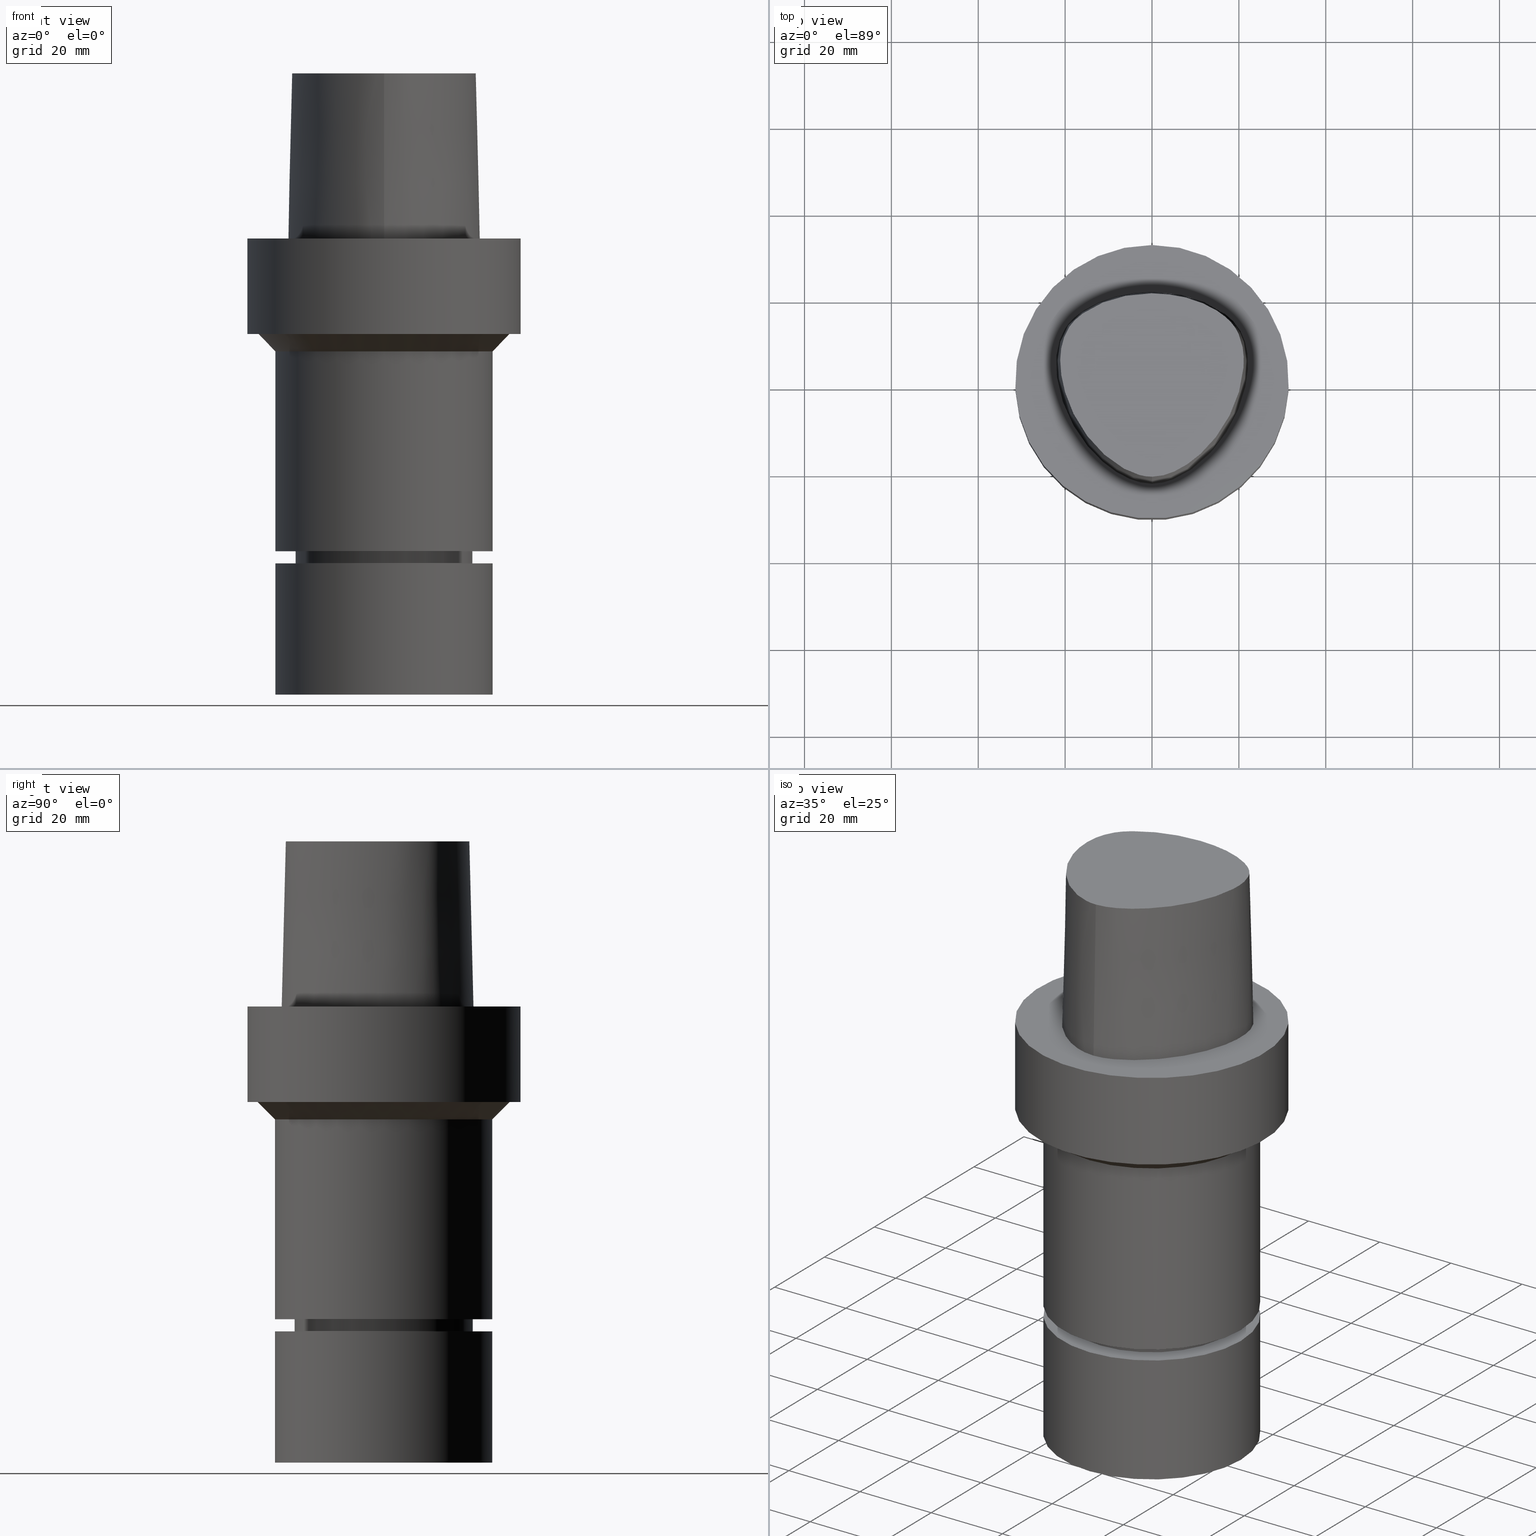
[diagram: canonical four-view strip — front | top / right | iso, engineering-drawing reading convention]
A machine part, canonical four-view strip (front | top / right | iso — engineering-drawing reading convention). The complete STEP part file that produces these views, byte-faithful:
ISO-10303-21;
HEADER;
FILE_DESCRIPTION((''),'1');
FILE_NAME('V:/90_\X2\53D65F9730C730FC30BF\X0\/00_\X2\6DE18DEF30C730FC30BF\X0\/ALL/CAPTO-BKUS\X2\52A05DE556F3\X0\_201801/C6-MEGAER/C6-MEGAER32-105NL.stp','2018-02-01T08:54:17',(''),(''),'Spatial Interop R21 SP3','Kubotek KeyCreator 2011 V10.0.2 (22737)',' ');
FILE_SCHEMA(('automotive_design'));
ENDSEC;
DATA;
#1=MECHANICAL_DESIGN_GEOMETRIC_PRESENTATION_REPRESENTATION(' ',(#14,#15,#16,#17,#18,#19,#20,#21,#22,#23,#24,#25,#26,#27,#28,#29,#30,#31,#32,#33,#34,#35,#36,#37,#38,#39,#40,#41,#42,#43,#44,#45,#46,#47,#48,#49,#50,#51,#52,#53),#10);
#2=PRODUCT_DEFINITION_CONTEXT('',#54,'design');
#3=APPLICATION_PROTOCOL_DEFINITION('INTERNATIONAL STANDARD','automotive_design',1994,#54);
#4=PRODUCT_CATEGORY_RELATIONSHIP('NONE','NONE',#55,#56);
#5=SHAPE_DEFINITION_REPRESENTATION(#57,#58);
#6=PRODUCT_DEFINITION_CONTEXT('',#59,'design');
#7=APPLICATION_PROTOCOL_DEFINITION('INTERNATIONAL STANDARD','automotive_design',1994,#59);
#8=PRODUCT_CATEGORY_RELATIONSHIP('NONE','NONE',#60,#61);
#9=SHAPE_DEFINITION_REPRESENTATION(#62,#63);
#10= (GEOMETRIC_REPRESENTATION_CONTEXT(3)GLOBAL_UNCERTAINTY_ASSIGNED_CONTEXT((#66))GLOBAL_UNIT_ASSIGNED_CONTEXT((#68,#69,#70))REPRESENTATION_CONTEXT('NONE','WORKSPACE'));
#14=STYLED_ITEM('',(#72,#73),#74);
#15=STYLED_ITEM('',(#75,#76),#77);
#16=STYLED_ITEM('',(#78,#79),#80);
#17=STYLED_ITEM('',(#81,#82),#83);
#18=STYLED_ITEM('',(#84),#85);
#19=STYLED_ITEM('',(#86),#87);
#20=STYLED_ITEM('',(#88),#89);
#21=STYLED_ITEM('',(#90),#91);
#22=STYLED_ITEM('',(#92,#93),#94);
#23=STYLED_ITEM('',(#95),#96);
#24=STYLED_ITEM('',(#97),#98);
#25=STYLED_ITEM('',(#99),#100);
#26=STYLED_ITEM('',(#101),#102);
#27=STYLED_ITEM('',(#103,#104),#105);
#28=STYLED_ITEM('',(#106),#107);
#29=STYLED_ITEM('',(#108,#109),#110);
#30=STYLED_ITEM('',(#111,#112),#113);
#31=STYLED_ITEM('',(#114,#115),#116);
#32=STYLED_ITEM('',(#117),#118);
#33=STYLED_ITEM('',(#119),#120);
#34=STYLED_ITEM('',(#121,#122),#123);
#35=STYLED_ITEM('',(#124),#125);
#36=STYLED_ITEM('',(#126,#127),#128);
#37=STYLED_ITEM('',(#129),#130);
#38=STYLED_ITEM('',(#131,#132),#133);
#39=STYLED_ITEM('',(#134,#135),#136);
#40=STYLED_ITEM('',(#137,#138),#139);
#41=STYLED_ITEM('',(#140,#141),#142);
#42=STYLED_ITEM('',(#143,#144),#145);
#43=STYLED_ITEM('',(#146),#147);
#44=STYLED_ITEM('',(#148),#149);
#45=STYLED_ITEM('',(#150),#151);
#46=STYLED_ITEM('',(#152,#153),#154);
#47=STYLED_ITEM('',(#155,#156),#157);
#48=STYLED_ITEM('',(#158),#159);
#49=STYLED_ITEM('',(#160),#161);
#50=STYLED_ITEM('',(#162),#163);
#51=STYLED_ITEM('',(#164,#165),#166);
#52=STYLED_ITEM('',(#167,#168),#169);
#53=STYLED_ITEM('',(#170),#171);
#54=APPLICATION_CONTEXT(' ');
#55=PRODUCT_CATEGORY('part','NONE');
#56=PRODUCT_RELATED_PRODUCT_CATEGORY('detail',' ',(#172));
#57=PRODUCT_DEFINITION_SHAPE('NONE','NONE',#173);
#58=ADVANCED_BREP_SHAPE_REPRESENTATION('Unnamed[1]',(#169,#174),#10);
#59=APPLICATION_CONTEXT(' ');
#60=PRODUCT_CATEGORY('part','NONE');
#61=PRODUCT_RELATED_PRODUCT_CATEGORY('detail',' ',(#175));
#62=PRODUCT_DEFINITION_SHAPE('NONE','NONE',#176);
#63=ADVANCED_BREP_SHAPE_REPRESENTATION('Unnamed[1]',(#116,#177),#10);
#66=UNCERTAINTY_MEASURE_WITH_UNIT(LENGTH_MEASURE(1.0E-006),#68,'','');
#68= (CONVERSION_BASED_UNIT('MILLIMETRE',#180)LENGTH_UNIT()NAMED_UNIT(#183));
#69= (NAMED_UNIT(#185)PLANE_ANGLE_UNIT()SI_UNIT($,.RADIAN.));
#70= (NAMED_UNIT(#185)SOLID_ANGLE_UNIT()SI_UNIT($,.STERADIAN.));
#72=PRESENTATION_STYLE_ASSIGNMENT((#191));
#73=PRESENTATION_STYLE_ASSIGNMENT((#192));
#74=ADVANCED_FACE('Unnamed[1]',(#193,#194),#195,.T.);
#75=PRESENTATION_STYLE_ASSIGNMENT((#196));
#76=PRESENTATION_STYLE_ASSIGNMENT((#197));
#77=ADVANCED_FACE('Unnamed[1]',(#198,#199),#200,.T.);
#78=PRESENTATION_STYLE_ASSIGNMENT((#201));
#79=PRESENTATION_STYLE_ASSIGNMENT((#202));
#80=ADVANCED_FACE('Unnamed[1]',(#203),#204,.T.);
#81=PRESENTATION_STYLE_ASSIGNMENT((#205));
#82=PRESENTATION_STYLE_ASSIGNMENT((#206));
#83=ADVANCED_FACE('Unnamed[1]',(#207,#208),#209,.T.);
#84=PRESENTATION_STYLE_ASSIGNMENT((#210));
#85=EDGE_CURVE('Unnamed[1]',#211,#212,#213,.T.);
#86=PRESENTATION_STYLE_ASSIGNMENT((#214));
#87=EDGE_CURVE('Unnamed[1]',#212,#215,#216,.T.);
#88=PRESENTATION_STYLE_ASSIGNMENT((#217));
#89=EDGE_CURVE('Unnamed[1]',#218,#218,#219,.T.);
#90=PRESENTATION_STYLE_ASSIGNMENT((#220));
#91=EDGE_CURVE('Unnamed[1]',#221,#221,#222,.T.);
#92=PRESENTATION_STYLE_ASSIGNMENT((#223));
#93=PRESENTATION_STYLE_ASSIGNMENT((#224));
#94=ADVANCED_FACE('Unnamed[1]',(#225,#226),#227,.T.);
#95=PRESENTATION_STYLE_ASSIGNMENT((#228));
#96=EDGE_CURVE('Unnamed[1]',#229,#229,#230,.T.);
#97=PRESENTATION_STYLE_ASSIGNMENT((#231));
#98=EDGE_CURVE('Unnamed[1]',#232,#232,#233,.T.);
#99=PRESENTATION_STYLE_ASSIGNMENT((#234));
#100=EDGE_CURVE('Unnamed[1]',#235,#212,#236,.T.);
#101=PRESENTATION_STYLE_ASSIGNMENT((#237));
#102=EDGE_CURVE('Unnamed[1]',#238,#238,#239,.T.);
#103=PRESENTATION_STYLE_ASSIGNMENT((#240));
#104=PRESENTATION_STYLE_ASSIGNMENT((#241));
#105=ADVANCED_FACE('Unnamed[1]',(#242,#243),#244,.T.);
#106=PRESENTATION_STYLE_ASSIGNMENT((#245));
#107=EDGE_CURVE('Unnamed[1]',#246,#246,#247,.T.);
#108=PRESENTATION_STYLE_ASSIGNMENT((#248));
#109=PRESENTATION_STYLE_ASSIGNMENT((#249));
#110=ADVANCED_FACE('Unnamed[1]',(#250,#251),#252,.T.);
#111=PRESENTATION_STYLE_ASSIGNMENT((#253));
#112=PRESENTATION_STYLE_ASSIGNMENT((#254));
#113=ADVANCED_FACE('Unnamed[1]',(#255),#256,.T.);
#114=PRESENTATION_STYLE_ASSIGNMENT((#257));
#115=PRESENTATION_STYLE_ASSIGNMENT((#258));
#116=MANIFOLD_SOLID_BREP('Unnamed[1]',#259);
#117=PRESENTATION_STYLE_ASSIGNMENT((#260));
#118=EDGE_CURVE('Unnamed[1]',#215,#211,#261,.T.);
#119=PRESENTATION_STYLE_ASSIGNMENT((#262));
#120=EDGE_CURVE('Unnamed[1]',#263,#263,#264,.T.);
#121=PRESENTATION_STYLE_ASSIGNMENT((#265));
#122=PRESENTATION_STYLE_ASSIGNMENT((#266));
#123=ADVANCED_FACE('Unnamed[1]',(#267),#268,.T.);
#124=PRESENTATION_STYLE_ASSIGNMENT((#269));
#125=EDGE_CURVE('Unnamed[1]',#235,#270,#271,.T.);
#126=PRESENTATION_STYLE_ASSIGNMENT((#272));
#127=PRESENTATION_STYLE_ASSIGNMENT((#273));
#128=ADVANCED_FACE('Unnamed[1]',(#274),#275,.T.);
#129=PRESENTATION_STYLE_ASSIGNMENT((#276));
#130=EDGE_CURVE('Unnamed[1]',#270,#211,#277,.T.);
#131=PRESENTATION_STYLE_ASSIGNMENT((#278));
#132=PRESENTATION_STYLE_ASSIGNMENT((#279));
#133=ADVANCED_FACE('Unnamed[1]',(#280,#281),#282,.T.);
#134=PRESENTATION_STYLE_ASSIGNMENT((#283));
#135=PRESENTATION_STYLE_ASSIGNMENT((#284));
#136=ADVANCED_FACE('Unnamed[1]',(#285,#286),#287,.T.);
#137=PRESENTATION_STYLE_ASSIGNMENT((#288));
#138=PRESENTATION_STYLE_ASSIGNMENT((#289));
#139=ADVANCED_FACE('Unnamed[1]',(#290),#291,.T.);
#140=PRESENTATION_STYLE_ASSIGNMENT((#292));
#141=PRESENTATION_STYLE_ASSIGNMENT((#293));
#142=ADVANCED_FACE('Unnamed[1]',(#294,#295),#296,.T.);
#143=PRESENTATION_STYLE_ASSIGNMENT((#297));
#144=PRESENTATION_STYLE_ASSIGNMENT((#298));
#145=ADVANCED_FACE('Unnamed[1]',(#299),#300,.T.);
#146=PRESENTATION_STYLE_ASSIGNMENT((#301));
#147=EDGE_CURVE('Unnamed[1]',#302,#302,#303,.T.);
#148=PRESENTATION_STYLE_ASSIGNMENT((#304));
#149=EDGE_CURVE('Unnamed[1]',#305,#305,#306,.T.);
#150=PRESENTATION_STYLE_ASSIGNMENT((#307));
#151=EDGE_CURVE('Unnamed[1]',#308,#308,#309,.T.);
#152=PRESENTATION_STYLE_ASSIGNMENT((#310));
#153=PRESENTATION_STYLE_ASSIGNMENT((#311));
#154=ADVANCED_FACE('Unnamed[1]',(#312,#313),#314,.T.);
#155=PRESENTATION_STYLE_ASSIGNMENT((#315));
#156=PRESENTATION_STYLE_ASSIGNMENT((#316));
#157=ADVANCED_FACE('Unnamed[1]',(#317,#318),#319,.T.);
#158=PRESENTATION_STYLE_ASSIGNMENT((#320));
#159=EDGE_CURVE('Unnamed[1]',#270,#235,#321,.T.);
#160=PRESENTATION_STYLE_ASSIGNMENT((#322));
#161=EDGE_CURVE('Unnamed[1]',#323,#323,#324,.T.);
#162=PRESENTATION_STYLE_ASSIGNMENT((#325));
#163=EDGE_CURVE('Unnamed[1]',#235,#215,#326,.T.);
#164=PRESENTATION_STYLE_ASSIGNMENT((#327));
#165=PRESENTATION_STYLE_ASSIGNMENT((#328));
#166=ADVANCED_FACE('Unnamed[1]',(#329),#330,.T.);
#167=PRESENTATION_STYLE_ASSIGNMENT((#331));
#168=PRESENTATION_STYLE_ASSIGNMENT((#332));
#169=MANIFOLD_SOLID_BREP('Unnamed[1]',#333);
#170=PRESENTATION_STYLE_ASSIGNMENT((#334));
#171=EDGE_CURVE('Unnamed[1]',#335,#335,#336,.T.);
#172=PRODUCT('Unnamed[1]','Unnamed[1]','PART-Unnamed[1]-DESC',(#337));
#173=PRODUCT_DEFINITION('NONE','NONE',#338,#2);
#174=AXIS2_PLACEMENT_3D('',#339,#340,#341);
#175=PRODUCT('Unnamed[1]','Unnamed[1]','PART-Unnamed[1]-DESC',(#342));
#176=PRODUCT_DEFINITION('NONE','NONE',#343,#6);
#177=AXIS2_PLACEMENT_3D('',#344,#345,#346);
#180=LENGTH_MEASURE_WITH_UNIT(LENGTH_MEASURE(1.0),#347);
#183=DIMENSIONAL_EXPONENTS(1.0,0.0,0.0,0.0,0.0,0.0,0.0);
#185=DIMENSIONAL_EXPONENTS(0.0,0.0,0.0,0.0,0.0,0.0,0.0);
#191=SURFACE_STYLE_USAGE(.BOTH.,#348);
#192=CURVE_STYLE('',#349,POSITIVE_LENGTH_MEASURE(1000.0),#350);
#193=FACE_BOUND('',#351,.T.);
#194=FACE_OUTER_BOUND('',#352,.T.);
#195=PLANE('',#353);
#196=SURFACE_STYLE_USAGE(.BOTH.,#354);
#197=CURVE_STYLE('',#355,POSITIVE_LENGTH_MEASURE(1000.0),#356);
#198=FACE_BOUND('',#357,.T.);
#199=FACE_BOUND('',#358,.T.);
#200=CYLINDRICAL_SURFACE('',#359,25.0);
#201=SURFACE_STYLE_USAGE(.BOTH.,#360);
#202=CURVE_STYLE('',#361,POSITIVE_LENGTH_MEASURE(1000.0),#362);
#203=FACE_OUTER_BOUND('',#363,.T.);
#204=CONICAL_SURFACE('',#364,1.0,0.0249931148600041);
#205=SURFACE_STYLE_USAGE(.BOTH.,#365);
#206=CURVE_STYLE('',#366,POSITIVE_LENGTH_MEASURE(1000.0),#367);
#207=FACE_BOUND('',#368,.T.);
#208=FACE_BOUND('',#369,.T.);
#209=CYLINDRICAL_SURFACE('',#370,31.5);
#210=CURVE_STYLE('',#371,POSITIVE_LENGTH_MEASURE(1000.0),#372);
#211=VERTEX_POINT('',#373);
#212=VERTEX_POINT('',#374);
#213=B_SPLINE_CURVE_WITH_KNOTS('',3,(#375,#376,#377,#378,#379,#380,#381,#382,#383,#384,#385,#386,#387,#388,#389,#390,#391,#392),.UNSPECIFIED.,.F.,.F.,(4,1,1,1,1,1,1,1,1,2,1,1,1,1,4),(-6.6151339308743,-6.20168806019465,-5.78824218951501,-5.37479631883537,-4.96135044815572,-4.13445870679644,-3.30756696543715,-2.89412109475751,-2.48067522407786,-2.06722935339822,-1.65378348271857,-1.24033761203893,-0.826891741359287,-0.413445870679644,0.0),.UNSPECIFIED.);
#214=CURVE_STYLE('',#393,POSITIVE_LENGTH_MEASURE(1000.0),#394);
#215=VERTEX_POINT('',#395);
#216=CIRCLE('',#396,0.949936168436318);
#217=CURVE_STYLE('',#397,POSITIVE_LENGTH_MEASURE(1000.0),#398);
#218=VERTEX_POINT('',#399);
#219=CIRCLE('',#400,31.5);
#220=CURVE_STYLE('',#401,POSITIVE_LENGTH_MEASURE(1000.0),#402);
#221=VERTEX_POINT('',#403);
#222=CIRCLE('',#404,28.9999999999999);
#223=SURFACE_STYLE_USAGE(.BOTH.,#405);
#224=CURVE_STYLE('',#406,POSITIVE_LENGTH_MEASURE(1000.0),#407);
#225=FACE_BOUND('',#408,.T.);
#226=FACE_BOUND('',#409,.T.);
#227=CYLINDRICAL_SURFACE('',#410,20.0);
#228=CURVE_STYLE('',#411,POSITIVE_LENGTH_MEASURE(1000.0),#412);
#229=VERTEX_POINT('',#413);
#230=CIRCLE('',#414,25.0);
#231=CURVE_STYLE('',#415,POSITIVE_LENGTH_MEASURE(1000.0),#416);
#232=VERTEX_POINT('',#417);
#233=CIRCLE('',#418,20.5000000000012);
#234=CURVE_STYLE('',#419,POSITIVE_LENGTH_MEASURE(1000.0),#420);
#235=VERTEX_POINT('',#421);
#236=LINE('',#422,#423);
#237=CURVE_STYLE('',#424,POSITIVE_LENGTH_MEASURE(1000.0),#425);
#238=VERTEX_POINT('',#426);
#239=CIRCLE('',#427,18.8999999999997);
#240=SURFACE_STYLE_USAGE(.BOTH.,#428);
#241=CURVE_STYLE('',#429,POSITIVE_LENGTH_MEASURE(1000.0),#430);
#242=FACE_BOUND('',#431,.T.);
#243=FACE_BOUND('',#432,.T.);
#244=CYLINDRICAL_SURFACE('',#433,20.4999999999961);
#245=CURVE_STYLE('',#434,POSITIVE_LENGTH_MEASURE(1000.0),#435);
#246=VERTEX_POINT('',#436);
#247=CIRCLE('',#437,20.0);
#248=SURFACE_STYLE_USAGE(.BOTH.,#438);
#249=CURVE_STYLE('',#439,POSITIVE_LENGTH_MEASURE(1000.0),#440);
#250=FACE_BOUND('',#441,.T.);
#251=FACE_OUTER_BOUND('',#442,.T.);
#252=PLANE('',#443);
#253=SURFACE_STYLE_USAGE(.BOTH.,#444);
#254=CURVE_STYLE('',#445,POSITIVE_LENGTH_MEASURE(1000.0),#446);
#255=FACE_OUTER_BOUND('',#447,.T.);
#256=PLANE('',#448);
#257=SURFACE_STYLE_USAGE(.BOTH.,#449);
#258=CURVE_STYLE('',#450,POSITIVE_LENGTH_MEASURE(1000.0),#451);
#259=CLOSED_SHELL('',(#113,#145,#77));
#260=CURVE_STYLE('',#452,POSITIVE_LENGTH_MEASURE(1000.0),#453);
#261=B_SPLINE_CURVE_WITH_KNOTS('',3,(#454,#455,#456,#457,#458,#459,#460,#461,#462,#463,#464,#465,#466,#467,#468,#469,#470),.UNSPECIFIED.,.F.,.F.,(4,1,1,1,1,1,1,1,1,1,1,1,1,1,4),(-13.2302678617486,-12.816821991069,-12.4033761203893,-11.9899302497097,-11.57648437903,-11.1630385083504,-10.9563155730106,-10.7495926376707,-10.3361467669911,-9.92270089631145,-9.09580915495216,-8.26891741359287,-7.44202567223358,-7.02857980155394,-6.6151339308743),.UNSPECIFIED.);
#262=CURVE_STYLE('',#471,POSITIVE_LENGTH_MEASURE(1000.0),#472);
#263=VERTEX_POINT('',#473);
#264=CIRCLE('',#474,31.5);
#265=SURFACE_STYLE_USAGE(.BOTH.,#475);
#266=CURVE_STYLE('',#476,POSITIVE_LENGTH_MEASURE(1000.0),#477);
#267=FACE_OUTER_BOUND('',#478,.T.);
#268=PLANE('',#479);
#269=CURVE_STYLE('',#480,POSITIVE_LENGTH_MEASURE(1000.0),#481);
#270=VERTEX_POINT('',#482);
#271=B_SPLINE_CURVE_WITH_KNOTS('',3,(#483,#484,#485,#486,#487,#488,#489,#490,#491,#492,#493,#494,#495,#496,#497,#498),.UNSPECIFIED.,.F.,.F.,(4,1,1,1,1,1,1,1,1,1,1,1,1,4),(0.0,0.447924670568964,0.9388024242536,1.50591409090711,2.07314340012323,2.72424957442464,3.2253501842849,3.80982102049476,4.34867996267067,4.85900173381144,5.37972031856977,6.03459825488646,6.61113557741484,6.61513393087395),.UNSPECIFIED.);
#272=SURFACE_STYLE_USAGE(.BOTH.,#499);
#273=CURVE_STYLE('',#500,POSITIVE_LENGTH_MEASURE(1000.0),#501);
#274=FACE_OUTER_BOUND('',#502,.T.);
#275=B_SPLINE_SURFACE_WITH_KNOTS('',3,3,((#503,#504,#505,#506),(#507,#508,#509,#510),(#511,#512,#513,#514),(#515,#516,#517,#518),(#519,#520,#521,#522),(#523,#524,#525,#526),(#527,#528,#529,#530),(#531,#532,#533,#534),(#535,#536,#537,#538),(#539,#540,#541,#542),(#543,#544,#545,#546),(#547,#548,#549,#550),(#551,#552,#553,#554),(#555,#556,#557,#558),(#559,#560,#561,#562),(#563,#564,#565,#566),(#567,#568,#569,#570),(#571,#572,#573,#574)),.UNSPECIFIED.,.F.,.F.,.F.,(4,1,1,1,1,1,1,1,1,2,1,1,1,1,4),(4,4),(-6.6151339308743,-6.20168806019465,-5.78824218951501,-5.37479631883537,-4.96135044815572,-4.13445870679644,-3.30756696543715,-2.89412109475751,-2.48067522407786,-2.06722935339822,-1.65378348271857,-1.24033761203893,-0.826891741359287,-0.413445870679644,0.0),(-3.8,0.0),.UNSPECIFIED.);
#276=CURVE_STYLE('',#575,POSITIVE_LENGTH_MEASURE(1000.0),#576);
#277=LINE('',#577,#578);
#278=SURFACE_STYLE_USAGE(.BOTH.,#579);
#279=CURVE_STYLE('',#580,POSITIVE_LENGTH_MEASURE(1000.0),#581);
#280=FACE_BOUND('',#582,.T.);
#281=FACE_BOUND('',#583,.T.);
#282=CONICAL_SURFACE('',#584,19.4499999999999,0.523598775598216);
#283=SURFACE_STYLE_USAGE(.BOTH.,#585);
#284=CURVE_STYLE('',#586,POSITIVE_LENGTH_MEASURE(1000.0),#587);
#285=FACE_BOUND('',#588,.T.);
#286=FACE_BOUND('',#589,.T.);
#287=CONICAL_SURFACE('',#590,20.2500000000006,1.04719755120249);
#288=SURFACE_STYLE_USAGE(.BOTH.,#591);
#289=CURVE_STYLE('',#592,POSITIVE_LENGTH_MEASURE(1000.0),#593);
#290=FACE_OUTER_BOUND('',#594,.T.);
#291=B_SPLINE_SURFACE_WITH_KNOTS('',3,3,((#595,#596,#597,#598),(#599,#600,#601,#602),(#603,#604,#605,#606),(#607,#608,#609,#610),(#611,#612,#613,#614),(#615,#616,#617,#618),(#619,#620,#621,#622),(#623,#624,#625,#626),(#627,#628,#629,#630),(#631,#632,#633,#634),(#635,#636,#637,#638),(#639,#640,#641,#642),(#643,#644,#645,#646),(#647,#648,#649,#650),(#651,#652,#653,#654),(#655,#656,#657,#658),(#659,#660,#661,#662)),.UNSPECIFIED.,.F.,.F.,.F.,(4,1,1,1,1,1,1,1,1,1,1,1,1,1,4),(4,4),(-13.2302678617486,-12.816821991069,-12.4033761203893,-11.9899302497097,-11.57648437903,-11.1630385083504,-10.9563155730106,-10.7495926376707,-10.3361467669911,-9.92270089631145,-9.09580915495216,-8.26891741359287,-7.44202567223358,-7.02857980155394,-6.6151339308743),(-3.8,0.0),.UNSPECIFIED.);
#292=SURFACE_STYLE_USAGE(.BOTH.,#663);
#293=CURVE_STYLE('',#664,POSITIVE_LENGTH_MEASURE(1000.0),#665);
#294=FACE_BOUND('',#666,.T.);
#295=FACE_BOUND('',#667,.T.);
#296=CONICAL_SURFACE('',#668,26.9999999999999,0.78539816339745);
#297=SURFACE_STYLE_USAGE(.BOTH.,#669);
#298=CURVE_STYLE('',#670,POSITIVE_LENGTH_MEASURE(1000.0),#671);
#299=FACE_OUTER_BOUND('',#672,.T.);
#300=PLANE('',#673);
#301=CURVE_STYLE('',#674,POSITIVE_LENGTH_MEASURE(1000.0),#675);
#302=VERTEX_POINT('',#676);
#303=CIRCLE('',#677,25.0);
#304=CURVE_STYLE('',#678,POSITIVE_LENGTH_MEASURE(1000.0),#679);
#305=VERTEX_POINT('',#680);
#306=CIRCLE('',#681,20.4999999999911);
#307=CURVE_STYLE('',#682,POSITIVE_LENGTH_MEASURE(1000.0),#683);
#308=VERTEX_POINT('',#684);
#309=CIRCLE('',#685,24.9999999999999);
#310=SURFACE_STYLE_USAGE(.BOTH.,#686);
#311=CURVE_STYLE('',#687,POSITIVE_LENGTH_MEASURE(1000.0),#688);
#312=FACE_BOUND('',#689,.T.);
#313=FACE_OUTER_BOUND('',#690,.T.);
#314=PLANE('',#691);
#315=SURFACE_STYLE_USAGE(.BOTH.,#692);
#316=CURVE_STYLE('',#693,POSITIVE_LENGTH_MEASURE(1000.0),#694);
#317=FACE_BOUND('',#695,.T.);
#318=FACE_BOUND('',#696,.T.);
#319=CYLINDRICAL_SURFACE('',#697,25.0);
#320=CURVE_STYLE('',#698,POSITIVE_LENGTH_MEASURE(1000.0),#699);
#321=B_SPLINE_CURVE_WITH_KNOTS('',3,(#700,#701,#702,#703,#704,#705,#706,#707,#708,#709,#710,#711,#712,#713,#714,#715),.UNSPECIFIED.,.F.,.F.,(4,1,1,1,1,1,1,1,1,1,1,1,1,4),(6.61513393087476,6.99917207152274,7.48193246986995,7.96289324787093,8.45540287038584,9.10291653679981,9.67129810936083,10.1618749681153,10.6358867802489,11.1080734988593,11.6043706019633,12.09451993853,12.6985979284494,13.2302678617486),.UNSPECIFIED.);
#322=CURVE_STYLE('',#716,POSITIVE_LENGTH_MEASURE(1000.0),#717);
#323=VERTEX_POINT('',#718);
#324=CIRCLE('',#719,25.0);
#325=CURVE_STYLE('',#720,POSITIVE_LENGTH_MEASURE(1000.0),#721);
#326=LINE('',#722,#723);
#327=SURFACE_STYLE_USAGE(.BOTH.,#724);
#328=CURVE_STYLE('',#725,POSITIVE_LENGTH_MEASURE(1000.0),#726);
#329=FACE_OUTER_BOUND('',#727,.T.);
#330=PLANE('',#728);
#331=SURFACE_STYLE_USAGE(.BOTH.,#729);
#332=CURVE_STYLE('',#730,POSITIVE_LENGTH_MEASURE(1000.0),#731);
#333=CLOSED_SHELL('',(#139,#128,#80,#123,#74,#83,#110,#142,#157,#154,#105,#136,#94,#133,#166));
#334=CURVE_STYLE('',#732,POSITIVE_LENGTH_MEASURE(1000.0),#733);
#335=VERTEX_POINT('',#734);
#336=CIRCLE('',#735,20.0000000000001);
#337=PRODUCT_CONTEXT('',#54,'mechanical');
#338=PRODUCT_DEFINITION_FORMATION_WITH_SPECIFIED_SOURCE(' ','NONE',#172,.NOT_KNOWN.);
#339=CARTESIAN_POINT('',(0.0,0.0,0.0));
#340=DIRECTION('',(0.0,0.0,1.0));
#341=DIRECTION('',(1.0,0.0,0.0));
#342=PRODUCT_CONTEXT('',#59,'mechanical');
#343=PRODUCT_DEFINITION_FORMATION_WITH_SPECIFIED_SOURCE(' ','NONE',#175,.NOT_KNOWN.);
#344=CARTESIAN_POINT('',(0.0,0.0,0.0));
#345=DIRECTION('',(0.0,0.0,1.0));
#346=DIRECTION('',(1.0,0.0,0.0));
#347= (NAMED_UNIT(#183)LENGTH_UNIT()SI_UNIT(.MILLI.,.METRE.));
#348=SURFACE_SIDE_STYLE('',(#737));
#349=DRAUGHTING_PRE_DEFINED_CURVE_FONT('continuous');
#350=COLOUR_RGB('',0.0,1.0,0.0);
#351=EDGE_LOOP('',(#738,#739,#740));
#352=EDGE_LOOP('',(#741));
#353=AXIS2_PLACEMENT_3D('',#742,#743,#744);
#354=SURFACE_SIDE_STYLE('',(#745));
#355=DRAUGHTING_PRE_DEFINED_CURVE_FONT('continuous');
#356=COLOUR_RGB('',0.0,1.0,0.0);
#357=EDGE_LOOP('',(#746));
#358=EDGE_LOOP('',(#747));
#359=AXIS2_PLACEMENT_3D('',#748,#749,#750);
#360=SURFACE_SIDE_STYLE('',(#751));
#361=DRAUGHTING_PRE_DEFINED_CURVE_FONT('continuous');
#362=COLOUR_RGB('',0.0,1.0,0.0);
#363=EDGE_LOOP('',(#752,#753,#754));
#364=AXIS2_PLACEMENT_3D('',#755,#756,#757);
#365=SURFACE_SIDE_STYLE('',(#758));
#366=DRAUGHTING_PRE_DEFINED_CURVE_FONT('continuous');
#367=COLOUR_RGB('',0.0,1.0,0.0);
#368=EDGE_LOOP('',(#759));
#369=EDGE_LOOP('',(#760));
#370=AXIS2_PLACEMENT_3D('',#761,#762,#763);
#371=DRAUGHTING_PRE_DEFINED_CURVE_FONT('continuous');
#372=COLOUR_RGB('',0.0,1.0,0.0);
#373=CARTESIAN_POINT('',(0.04359356758149,-23.4691235068931,7.78075697532443E-032));
#374=CARTESIAN_POINT('',(-0.045171994691285,20.6766009553285,1.6755590516169E-031));
#375=CARTESIAN_POINT('',(0.04359356758149,-23.4691235068931,7.78075697532443E-032));
#376=CARTESIAN_POINT('',(-1.4714994713963,-23.4767895315797,2.46519032881566E-032));
#377=CARTESIAN_POINT('',(-4.43923476371401,-22.821149804767,-4.93038065763132E-032));
#378=CARTESIAN_POINT('',(-8.35043230079961,-20.8000751253325,-9.86076131526265E-032));
#379=CARTESIAN_POINT('',(-11.744900222602,-18.1556117874078,-1.97215226305253E-031));
#380=CARTESIAN_POINT('',(-15.6989602501314,-14.0406306929147,-1.97215226305253E-031));
#381=CARTESIAN_POINT('',(-19.5352875070682,-8.00624990770787,1.97215226305253E-031));
#382=CARTESIAN_POINT('',(-21.7205626190491,-1.16081708945282,0.0));
#383=CARTESIAN_POINT('',(-22.2486616783342,4.54965558738736,0.0));
#384=CARTESIAN_POINT('',(-21.6646421256468,9.00229539124618,0.0));
#385=CARTESIAN_POINT('',(-20.3945635471922,11.7780544971003,0.0));
#386=CARTESIAN_POINT('',(-18.5925528034471,14.1980602922581,0.0));
#387=CARTESIAN_POINT('',(-16.3226584122258,16.1777748720707,0.0));
#388=CARTESIAN_POINT('',(-12.5076407874579,18.2524201541303,9.86076131526265E-032));
#389=CARTESIAN_POINT('',(-8.46776192107786,19.679114377952,9.86076131526265E-032));
#390=CARTESIAN_POINT('',(-4.23043497193604,20.487781597334,1.97215226305253E-031));
#391=CARTESIAN_POINT('',(-1.42313094248379,20.6127745766442,1.10933564796705E-031));
#392=CARTESIAN_POINT('',(-0.045171994691285,20.6766009553285,1.6755590516169E-031));
#393=DRAUGHTING_PRE_DEFINED_CURVE_FONT('continuous');
#394=COLOUR_RGB('',0.0,1.0,0.0);
#395=CARTESIAN_POINT('',(0.044682985379347,20.6765087343109,1.61778115328528E-031));
#396=AXIS2_PLACEMENT_3D('',#764,#765,#766);
#397=DRAUGHTING_PRE_DEFINED_CURVE_FONT('continuous');
#398=COLOUR_RGB('',0.0,1.0,0.0);
#399=CARTESIAN_POINT('',(1.34711147906212E-015,31.5,-22.0000000000006));
#400=AXIS2_PLACEMENT_3D('',#767,#768,#769);
#401=DRAUGHTING_PRE_DEFINED_CURVE_FONT('continuous');
#402=COLOUR_RGB('',0.0,1.0,0.0);
#403=CARTESIAN_POINT('',(1.34711147906212E-015,28.9999999999999,-22.0000000000006));
#404=AXIS2_PLACEMENT_3D('',#770,#771,#772);
#405=SURFACE_SIDE_STYLE('',(#773));
#406=DRAUGHTING_PRE_DEFINED_CURVE_FONT('continuous');
#407=COLOUR_RGB('',0.0,1.0,0.0);
#408=EDGE_LOOP('',(#774));
#409=EDGE_LOOP('',(#775));
#410=AXIS2_PLACEMENT_3D('',#776,#777,#778);
#411=DRAUGHTING_PRE_DEFINED_CURVE_FONT('continuous');
#412=COLOUR_RGB('',0.0,1.0,0.0);
#413=CARTESIAN_POINT('',(4.40873812527377E-015,25.0,-72.0001575694037));
#414=AXIS2_PLACEMENT_3D('',#779,#780,#781);
#415=DRAUGHTING_PRE_DEFINED_CURVE_FONT('continuous');
#416=COLOUR_RGB('',0.0,1.0,0.0);
#417=CARTESIAN_POINT('',(4.78907208101742E-015,20.5000000000012,-78.211482434801));
#418=AXIS2_PLACEMENT_3D('',#782,#783,#784);
#419=DRAUGHTING_PRE_DEFINED_CURVE_FONT('continuous');
#420=COLOUR_RGB('',0.0,1.0,0.0);
#421=CARTESIAN_POINT('',(-0.001218547003662,19.7276821925089,38.0));
#422=CARTESIAN_POINT('',(-0.001218547003662,19.7276821925089,38.0));
#423=VECTOR('',#785,38.0118715498723);
#424=DRAUGHTING_PRE_DEFINED_CURVE_FONT('continuous');
#425=COLOUR_RGB('',0.0,1.0,0.0);
#426=CARTESIAN_POINT('',(5.75583995599257E-015,18.8999999999997,-94.0000000000001));
#427=AXIS2_PLACEMENT_3D('',#786,#787,#788);
#428=SURFACE_SIDE_STYLE('',(#789));
#429=DRAUGHTING_PRE_DEFINED_CURVE_FONT('continuous');
#430=COLOUR_RGB('',0.0,1.0,0.0);
#431=EDGE_LOOP('',(#790));
#432=EDGE_LOOP('',(#791));
#433=AXIS2_PLACEMENT_3D('',#792,#793,#794);
#434=DRAUGHTING_PRE_DEFINED_CURVE_FONT('continuous');
#435=COLOUR_RGB('',0.0,1.0,0.0);
#436=CARTESIAN_POINT('',(4.80674833499597E-015,20.0,-78.5001575693925));
#437=AXIS2_PLACEMENT_3D('',#795,#796,#797);
#438=SURFACE_SIDE_STYLE('',(#798));
#439=DRAUGHTING_PRE_DEFINED_CURVE_FONT('continuous');
#440=COLOUR_RGB('',0.0,1.0,0.0);
#441=EDGE_LOOP('',(#799));
#442=EDGE_LOOP('',(#800));
#443=AXIS2_PLACEMENT_3D('',#801,#802,#803);
#444=SURFACE_SIDE_STYLE('',(#804));
#445=DRAUGHTING_PRE_DEFINED_CURVE_FONT('continuous');
#446=COLOUR_RGB('',0.0,1.0,0.0);
#447=EDGE_LOOP('',(#805));
#448=AXIS2_PLACEMENT_3D('',#806,#807,#808);
#449=SURFACE_SIDE_STYLE('',(#809));
#450=DRAUGHTING_PRE_DEFINED_CURVE_FONT('continuous');
#451=COLOUR_RGB('',0.0,1.0,0.0);
#452=DRAUGHTING_PRE_DEFINED_CURVE_FONT('continuous');
#453=COLOUR_RGB('',0.0,1.0,0.0);
#454=CARTESIAN_POINT('',(0.044682985379347,20.6765087343109,1.61778115328528E-031));
#455=CARTESIAN_POINT('',(1.42379272427753,20.6097915814392,8.62816615085482E-032));
#456=CARTESIAN_POINT('',(4.2230955003445,20.4837538303966,1.4791141972894E-031));
#457=CARTESIAN_POINT('',(8.47220762821777,19.6890432607088,9.86076131526265E-032));
#458=CARTESIAN_POINT('',(12.5141247708253,18.2434968480404,0.0));
#459=CARTESIAN_POINT('',(16.3038624872874,16.1734192182143,1.97215226305253E-031));
#460=CARTESIAN_POINT('',(19.1446913988473,13.7036723639434,-1.97215226305253E-031));
#461=CARTESIAN_POINT('',(20.7319894342149,11.1014620996188,0.0));
#462=CARTESIAN_POINT('',(21.7831756505763,8.28099229708081,-1.97215226305253E-031));
#463=CARTESIAN_POINT('',(22.2258240701438,4.60865440596506,0.0));
#464=CARTESIAN_POINT('',(21.7436130080666,-1.11326526354485,0.0));
#465=CARTESIAN_POINT('',(19.5519487660502,-7.95432366164584,0.0));
#466=CARTESIAN_POINT('',(14.9574167123838,-15.2089785567293,0.0));
#467=CARTESIAN_POINT('',(9.66840283021945,-20.0827414369705,-9.86076131526265E-032));
#468=CARTESIAN_POINT('',(4.51628650521788,-22.7946374572188,-9.86076131526265E-032));
#469=CARTESIAN_POINT('',(1.55867251738073,-23.4612972770043,-1.23259516440783E-032));
#470=CARTESIAN_POINT('',(0.04359356758149,-23.4691235068931,7.78075697532443E-032));
#471=DRAUGHTING_PRE_DEFINED_CURVE_FONT('continuous');
#472=COLOUR_RGB('',0.0,1.0,0.0);
#473=CARTESIAN_POINT('',(-3.88267476788467E-031,31.5,3.85763741731416E-015));
#474=AXIS2_PLACEMENT_3D('',#810,#811,#812);
#475=SURFACE_SIDE_STYLE('',(#813));
#476=DRAUGHTING_PRE_DEFINED_CURVE_FONT('continuous');
#477=COLOUR_RGB('',0.0,1.0,0.0);
#478=EDGE_LOOP('',(#814,#815));
#479=AXIS2_PLACEMENT_3D('',#816,#817,#818);
#480=DRAUGHTING_PRE_DEFINED_CURVE_FONT('continuous');
#481=COLOUR_RGB('',0.0,1.0,0.0);
#482=CARTESIAN_POINT('',(0.038736923393866,-22.5191997536361,38.0));
#483=CARTESIAN_POINT('',(-0.001218547003662,19.7276821925089,38.0));
#484=CARTESIAN_POINT('',(-1.49408492138443,19.6585333605309,38.0));
#485=CARTESIAN_POINT('',(-4.62297391420352,19.513604770166,38.0));
#486=CARTESIAN_POINT('',(-9.56160616752212,18.4291575730197,38.0));
#487=CARTESIAN_POINT('',(-14.5427684976927,16.2697452580488,38.0));
#488=CARTESIAN_POINT('',(-19.4315563551602,12.5302108980807,38.0));
#489=CARTESIAN_POINT('',(-21.306358833612,6.76352894547076,38.0));
#490=CARTESIAN_POINT('',(-21.0724946936277,0.957075236984038,38.0));
#491=CARTESIAN_POINT('',(-19.7876470880144,-4.34628503581652,38.0));
#492=CARTESIAN_POINT('',(-17.5396999600095,-9.33314444653089,38.0));
#493=CARTESIAN_POINT('',(-14.645447733857,-13.7185760345629,38.0));
#494=CARTESIAN_POINT('',(-10.7996726536643,-17.856257282137,38.0));
#495=CARTESIAN_POINT('',(-6.00479510196376,-21.2687382067675,38.0));
#496=CARTESIAN_POINT('',(-1.90747171908525,-22.5250621415864,38.0));
#497=CARTESIAN_POINT('',(0.025424107066464,-22.5192678176378,38.0));
#498=CARTESIAN_POINT('',(0.038736923394311,-22.519199753636,38.0));
#499=SURFACE_SIDE_STYLE('',(#819));
#500=DRAUGHTING_PRE_DEFINED_CURVE_FONT('continuous');
#501=COLOUR_RGB('',0.0,1.0,0.0);
#502=EDGE_LOOP('',(#820,#821,#822,#823));
#503=CARTESIAN_POINT('',(0.038736923393866,-22.5191997536361,38.0));
#504=CARTESIAN_POINT('',(0.04035580478973,-22.8358410047159,25.3333333333066));
#505=CARTESIAN_POINT('',(0.041974686185626,-23.1524822558133,12.6666666666934));
#506=CARTESIAN_POINT('',(0.04359356758149,-23.4691235068931,7.78075697532443E-032));
#507=CARTESIAN_POINT('',(-1.33786123484754,-22.5261650259856,38.0));
#508=CARTESIAN_POINT('',(-1.38240731367927,-22.8430399310626,25.3333333333066));
#509=CARTESIAN_POINT('',(-1.42695339249092,-23.1599147815484,12.6666666666934));
#510=CARTESIAN_POINT('',(-1.4714994713963,-23.4767895315797,2.46519032881566E-032));
#511=CARTESIAN_POINT('',(-4.08909358431842,-21.9268839879558,38.0));
#512=CARTESIAN_POINT('',(-4.20580731135515,-22.2249725500078,25.3333333333066));
#513=CARTESIAN_POINT('',(-4.32252104640446,-22.5230611651922,12.6666666666934));
#514=CARTESIAN_POINT('',(-4.43923476371401,-22.821149804767,-4.93038065763132E-032));
#515=CARTESIAN_POINT('',(-7.8333083619947,-19.9973514861616,38.0));
#516=CARTESIAN_POINT('',(-8.00568301809614,-20.2649260859405,25.3333333333066));
#517=CARTESIAN_POINT('',(-8.1780576640789,-20.532500564315,12.6666666666934));
#518=CARTESIAN_POINT('',(-8.35043230079961,-20.8000751253325,-9.86076131526265E-032));
#519=CARTESIAN_POINT('',(-11.1035071147626,-17.450554957873,38.0));
#520=CARTESIAN_POINT('',(-11.3173048160562,-17.6855739222454,25.3333333333066));
#521=CARTESIAN_POINT('',(-11.5311025116181,-17.9205928617968,12.6666666666934));
#522=CARTESIAN_POINT('',(-11.744900222602,-18.1556117874078,-1.97215226305253E-031));
#523=CARTESIAN_POINT('',(-14.9379535189057,-13.461132049697,38.0));
#524=CARTESIAN_POINT('',(-15.191622410671,-13.6542981711372,25.3333333333066));
#525=CARTESIAN_POINT('',(-15.4452913389853,-13.8474645327131,12.6666666666934));
#526=CARTESIAN_POINT('',(-15.6989602501314,-14.0406306929147,-1.97215226305253E-031));
#527=CARTESIAN_POINT('',(-18.6681263017223,-7.59391757463204,38.0));
#528=CARTESIAN_POINT('',(-18.9571800800711,-7.73136168081928,25.3333333333066));
#529=CARTESIAN_POINT('',(-19.2462337287194,-7.86880572399774,12.6666666666934));
#530=CARTESIAN_POINT('',(-19.5352875070682,-8.00624990770787,1.97215226305253E-031));
#531=CARTESIAN_POINT('',(-20.7857899858339,-0.952862819790525,38.0));
#532=CARTESIAN_POINT('',(-21.0973808305434,-1.02218087467418,25.3333333333066));
#533=CARTESIAN_POINT('',(-21.408971677436,-1.09149899580772,12.6666666666934));
#534=CARTESIAN_POINT('',(-21.7205626190491,-1.16081708945282,0.0));
#535=CARTESIAN_POINT('',(-21.2911760556836,4.5469215763113,38.0));
#536=CARTESIAN_POINT('',(-21.610337904926,4.54783292082248,25.3333333333066));
#537=CARTESIAN_POINT('',(-21.9294998290918,4.54874426225691,12.6666666666934));
#538=CARTESIAN_POINT('',(-22.2486616783342,4.54965558738736,0.0));
#539=CARTESIAN_POINT('',(-20.7345309521958,8.74909381391006,38.0));
#540=CARTESIAN_POINT('',(-21.0445680426217,8.83349432450556,25.3333333333066));
#541=CARTESIAN_POINT('',(-21.3546050933631,8.91789488065068,12.6666666666934));
#542=CARTESIAN_POINT('',(-21.6646421256468,9.00229539124618,0.0));
#543=CARTESIAN_POINT('',(-19.5531512296439,11.3174844040833,38.0));
#544=CARTESIAN_POINT('',(-19.8336219699984,11.4710077674213,25.3333333333066));
#545=CARTESIAN_POINT('',(-20.1140927680763,11.6245311337623,12.6666666666934));
#546=CARTESIAN_POINT('',(-20.3945635471922,11.7780544971003,0.0));
#547=CARTESIAN_POINT('',(-17.9100913688793,13.524027510437,38.0));
#548=CARTESIAN_POINT('',(-18.1375785458768,13.7487051053655,25.3333333333066));
#549=CARTESIAN_POINT('',(-18.365065665211,13.9733826973296,12.6666666666934));
#550=CARTESIAN_POINT('',(-18.5925528034471,14.1980602922581,0.0));
#551=CARTESIAN_POINT('',(-15.7996349656398,15.3762170634413,38.0));
#552=CARTESIAN_POINT('',(-15.9739761051783,15.6434029846179,25.3333333333066));
#553=CARTESIAN_POINT('',(-16.1483172726872,15.9105889315134,12.6666666666934));
#554=CARTESIAN_POINT('',(-16.3226584122258,16.1777748720707,0.0));
#555=CARTESIAN_POINT('',(-12.1175640002064,17.3825162484012,38.0));
#556=CARTESIAN_POINT('',(-12.2475895903055,17.6724842099619,25.3333333333066));
#557=CARTESIAN_POINT('',(-12.3776152070492,17.9624521925696,12.6666666666934));
#558=CARTESIAN_POINT('',(-12.5076407874579,18.2524201541303,9.86076131526265E-032));
#559=CARTESIAN_POINT('',(-8.21761151654222,18.7588585989994,38.0));
#560=CARTESIAN_POINT('',(-8.30099497910627,19.0656105427881,25.3333333333066));
#561=CARTESIAN_POINT('',(-8.38437843913309,19.3723624535439,12.6666666666934));
#562=CARTESIAN_POINT('',(-8.46776192107786,19.679114377952,9.86076131526265E-032));
#563=CARTESIAN_POINT('',(-4.13466093881225,19.5396850837055,38.0));
#564=CARTESIAN_POINT('',(-4.16658562115465,19.8557172636973,25.3333333333066));
#565=CARTESIAN_POINT('',(-4.19851029939059,20.1717494367229,12.6666666666934));
#566=CARTESIAN_POINT('',(-4.23043497193604,20.487781597334,1.97215226305253E-031));
#567=CARTESIAN_POINT('',(-1.37917220403684,19.6638560588908,38.0));
#568=CARTESIAN_POINT('',(-1.39382511685176,19.98016223565,25.3333333333066));
#569=CARTESIAN_POINT('',(-1.40847802945569,20.296468399885,12.6666666666934));
#570=CARTESIAN_POINT('',(-1.42313094248379,20.6127745766442,1.10933564796705E-031));
#571=CARTESIAN_POINT('',(-0.001218547003662,19.7276821925089,38.0));
#572=CARTESIAN_POINT('',(-0.015869696232855,20.043988446791,25.3333333333066));
#573=CARTESIAN_POINT('',(-0.030520845462092,20.3602947010464,12.6666666666934));
#574=CARTESIAN_POINT('',(-0.045171994691285,20.6766009553285,1.6755590516169E-031));
#575=DRAUGHTING_PRE_DEFINED_CURVE_FONT('continuous');
#576=COLOUR_RGB('',0.0,1.0,0.0);
#577=CARTESIAN_POINT('',(0.038736923393866,-22.5191997536361,38.0));
#578=VECTOR('',#824,38.0118715498723);
#579=SURFACE_SIDE_STYLE('',(#825));
#580=DRAUGHTING_PRE_DEFINED_CURVE_FONT('continuous');
#581=COLOUR_RGB('',0.0,1.0,0.0);
#582=EDGE_LOOP('',(#826));
#583=EDGE_LOOP('',(#827));
#584=AXIS2_PLACEMENT_3D('',#828,#829,#830);
#585=SURFACE_SIDE_STYLE('',(#831));
#586=DRAUGHTING_PRE_DEFINED_CURVE_FONT('continuous');
#587=COLOUR_RGB('',0.0,1.0,0.0);
#588=EDGE_LOOP('',(#832));
#589=EDGE_LOOP('',(#833));
#590=AXIS2_PLACEMENT_3D('',#834,#835,#836);
#591=SURFACE_SIDE_STYLE('',(#837));
#592=DRAUGHTING_PRE_DEFINED_CURVE_FONT('continuous');
#593=COLOUR_RGB('',0.0,1.0,0.0);
#594=EDGE_LOOP('',(#838,#839,#840,#841));
#595=CARTESIAN_POINT('',(-0.001218367817519,19.7276822012873,38.0));
#596=CARTESIAN_POINT('',(0.014082083248157,20.0439577123075,25.3333333333066));
#597=CARTESIAN_POINT('',(0.029382534313671,20.3602332232908,12.6666666666934));
#598=CARTESIAN_POINT('',(0.044682985379347,20.6765087343109,1.61778115328528E-031));
#599=CARTESIAN_POINT('',(1.37788651195108,19.6609652834875,38.0));
#600=CARTESIAN_POINT('',(1.3931885827258,19.9772407169847,25.3333333333066));
#601=CARTESIAN_POINT('',(1.40849065356095,20.2935162254648,12.6666666666934));
#602=CARTESIAN_POINT('',(1.42379272427753,20.6097915814392,8.62816615085482E-032));
#603=CARTESIAN_POINT('',(4.135446440878,19.5347778787784,38.0));
#604=CARTESIAN_POINT('',(4.16466278851883,19.8511031866125,25.3333333333066));
#605=CARTESIAN_POINT('',(4.1938791526746,20.1674284644204,12.6666666666934));
#606=CARTESIAN_POINT('',(4.2230955003445,20.4837538303966,1.4791141972894E-031));
#607=CARTESIAN_POINT('',(8.213607363795,18.7706026638736,38.0));
#608=CARTESIAN_POINT('',(8.29980745008421,19.0767495109635,25.3333333333066));
#609=CARTESIAN_POINT('',(8.38600751285747,19.3828964329996,12.6666666666934));
#610=CARTESIAN_POINT('',(8.47220762821777,19.6890432607088,9.86076131526265E-032));
#611=CARTESIAN_POINT('',(12.1316338645671,17.3698624840857,38.0));
#612=CARTESIAN_POINT('',(12.2591308270381,17.6610739397708,25.3333333333066));
#613=CARTESIAN_POINT('',(12.3866278083543,17.9522853923553,12.6666666666934));
#614=CARTESIAN_POINT('',(12.5141247708253,18.2434968480404,0.0));
#615=CARTESIAN_POINT('',(15.7706546153679,15.3789501349612,38.0));
#616=CARTESIAN_POINT('',(15.9483905900895,15.6437731794811,25.3333333333066));
#617=CARTESIAN_POINT('',(16.1261265513272,15.9085961736944,12.6666666666934));
#618=CARTESIAN_POINT('',(16.3038624872874,16.1734192182143,1.97215226305253E-031));
#619=CARTESIAN_POINT('',(18.4265894256284,13.0570022172893,38.0));
#620=CARTESIAN_POINT('',(18.6659567517146,13.2725589420689,25.3333333333066));
#621=CARTESIAN_POINT('',(18.9053240921419,13.4881156488541,12.6666666666934));
#622=CARTESIAN_POINT('',(19.1446913988473,13.7036723639434,-1.97215226305253E-031));
#623=CARTESIAN_POINT('',(19.8679958653038,10.6923771981998,38.0));
#624=CARTESIAN_POINT('',(20.1559937048299,10.8287388264873,25.3333333333066));
#625=CARTESIAN_POINT('',(20.4439915656177,10.965100461641,12.6666666666934));
#626=CARTESIAN_POINT('',(20.7319894342149,11.1014620996188,0.0));
#627=CARTESIAN_POINT('',(20.8470867582337,8.07149548576131,38.0));
#628=CARTESIAN_POINT('',(21.1591164072431,8.14132775555392,25.3333333333066));
#629=CARTESIAN_POINT('',(21.4711459821861,8.21116003697855,12.6666666666934));
#630=CARTESIAN_POINT('',(21.7831756505763,8.28099229708081,-1.97215226305253E-031));
#631=CARTESIAN_POINT('',(21.2693244256982,4.61157245650171,38.0));
#632=CARTESIAN_POINT('',(21.5881576801997,4.6105997689982,25.3333333333066));
#633=CARTESIAN_POINT('',(21.9069908544037,4.60962709346857,12.6666666666934));
#634=CARTESIAN_POINT('',(22.2258240701438,4.60865440596506,0.0));
#635=CARTESIAN_POINT('',(20.8071610855575,-0.912828649855193,38.0));
#636=CARTESIAN_POINT('',(21.119311671178,-0.979640884839481,25.3333333333066));
#637=CARTESIAN_POINT('',(21.4314624224461,-1.04645306732201,12.6666666666934));
#638=CARTESIAN_POINT('',(21.7436130080666,-1.11326526354485,0.0));
#639=CARTESIAN_POINT('',(18.6841935581315,-7.54428794252837,38.0));
#640=CARTESIAN_POINT('',(18.9734452551861,-7.6809665891091,25.3333333333066));
#641=CARTESIAN_POINT('',(19.2626970689956,-7.81764505382656,12.6666666666934));
#642=CARTESIAN_POINT('',(19.5519487660502,-7.95432366164584,0.0));
#643=CARTESIAN_POINT('',(14.2175552814,-14.5971504342323,38.0));
#644=CARTESIAN_POINT('',(14.4641757465198,-14.8010930946929,25.3333333333066));
#645=CARTESIAN_POINT('',(14.710796247264,-15.0050359737917,12.6666666666934));
#646=CARTESIAN_POINT('',(14.9574167123838,-15.2089785567293,0.0));
#647=CARTESIAN_POINT('',(9.0844808732933,-19.3179298129689,38.0));
#648=CARTESIAN_POINT('',(9.27912152349017,-19.572866915557,25.3333333333066));
#649=CARTESIAN_POINT('',(9.47376218971294,-19.827804295621,12.6666666666934));
#650=CARTESIAN_POINT('',(9.66840283021945,-20.0827414369705,-9.86076131526265E-032));
#651=CARTESIAN_POINT('',(4.17112919194182,-21.8987568152736,38.0));
#652=CARTESIAN_POINT('',(4.28618163483998,-22.1973837173649,25.3333333333066));
#653=CARTESIAN_POINT('',(4.40123406239433,-22.4960105163661,12.6666666666934));
#654=CARTESIAN_POINT('',(4.51628650521788,-22.7946374572188,-9.86076131526265E-032));
#655=CARTESIAN_POINT('',(1.41533654381097,-22.5120888467812,38.0));
#656=CARTESIAN_POINT('',(1.46311520162011,-22.8284916374445,25.3333333333066));
#657=CARTESIAN_POINT('',(1.51089385942236,-23.144894486341,12.6666666666934));
#658=CARTESIAN_POINT('',(1.55867251738073,-23.4612972770043,-1.23259516440783E-032));
#659=CARTESIAN_POINT('',(0.038736923393866,-22.5191997536361,38.0));
#660=CARTESIAN_POINT('',(0.04035580478973,-22.8358410047159,25.3333333333066));
#661=CARTESIAN_POINT('',(0.041974686185626,-23.1524822558133,12.6666666666934));
#662=CARTESIAN_POINT('',(0.04359356758149,-23.4691235068931,7.78075697532443E-032));
#663=SURFACE_SIDE_STYLE('',(#842));
#664=DRAUGHTING_PRE_DEFINED_CURVE_FONT('continuous');
#665=COLOUR_RGB('',0.0,1.0,0.0);
#666=EDGE_LOOP('',(#843));
#667=EDGE_LOOP('',(#844));
#668=AXIS2_PLACEMENT_3D('',#845,#846,#847);
#669=SURFACE_SIDE_STYLE('',(#848));
#670=DRAUGHTING_PRE_DEFINED_CURVE_FONT('continuous');
#671=COLOUR_RGB('',0.0,1.0,0.0);
#672=EDGE_LOOP('',(#849));
#673=AXIS2_PLACEMENT_3D('',#850,#851,#852);
#674=DRAUGHTING_PRE_DEFINED_CURVE_FONT('continuous');
#675=COLOUR_RGB('',0.0,1.0,0.0);
#676=CARTESIAN_POINT('',(6.4293956955236E-015,25.0,-105.0));
#677=AXIS2_PLACEMENT_3D('',#853,#854,#855);
#678=DRAUGHTING_PRE_DEFINED_CURVE_FONT('continuous');
#679=COLOUR_RGB('',0.0,1.0,0.0);
#680=CARTESIAN_POINT('',(4.4087381252738E-015,20.4999999999911,-72.0001575694042));
#681=AXIS2_PLACEMENT_3D('',#856,#857,#858);
#682=DRAUGHTING_PRE_DEFINED_CURVE_FONT('continuous');
#683=COLOUR_RGB('',0.0,1.0,0.0);
#684=CARTESIAN_POINT('',(1.59204083889159E-015,24.9999999999999,-26.0000000000006));
#685=AXIS2_PLACEMENT_3D('',#859,#860,#861);
#686=SURFACE_SIDE_STYLE('',(#862));
#687=DRAUGHTING_PRE_DEFINED_CURVE_FONT('continuous');
#688=COLOUR_RGB('',0.0,1.0,0.0);
#689=EDGE_LOOP('',(#863));
#690=EDGE_LOOP('',(#864));
#691=AXIS2_PLACEMENT_3D('',#865,#866,#867);
#692=SURFACE_SIDE_STYLE('',(#868));
#693=DRAUGHTING_PRE_DEFINED_CURVE_FONT('continuous');
#694=COLOUR_RGB('',0.0,1.0,0.0);
#695=EDGE_LOOP('',(#869));
#696=EDGE_LOOP('',(#870));
#697=AXIS2_PLACEMENT_3D('',#871,#872,#873);
#698=DRAUGHTING_PRE_DEFINED_CURVE_FONT('continuous');
#699=COLOUR_RGB('',0.0,1.0,0.0);
#700=CARTESIAN_POINT('',(0.038736923394311,-22.519199753636,38.0));
#701=CARTESIAN_POINT('',(1.31742058183662,-22.512662269405,38.0));
#702=CARTESIAN_POINT('',(4.2093773447498,-21.9116226439989,38.0));
#703=CARTESIAN_POINT('',(8.20895504542113,-19.7798683845067,38.0));
#704=CARTESIAN_POINT('',(11.9784633234593,-16.681663904162,38.0));
#705=CARTESIAN_POINT('',(15.5308821579362,-12.5807487594113,38.0));
#706=CARTESIAN_POINT('',(18.4566248438667,-7.64932246015528,38.0));
#707=CARTESIAN_POINT('',(20.4036090752029,-2.27012499825289,38.0));
#708=CARTESIAN_POINT('',(21.2357187429189,2.79891401173156,38.0));
#709=CARTESIAN_POINT('',(21.0811206267748,7.62543090736657,38.0));
#710=CARTESIAN_POINT('',(19.3383577336563,12.2772250726194,38.0));
#711=CARTESIAN_POINT('',(15.5796322014404,15.5799672120682,38.0));
#712=CARTESIAN_POINT('',(10.8392956074438,17.9834601687347,38.0));
#713=CARTESIAN_POINT('',(5.56068045850571,19.4586143858472,38.0));
#714=CARTESIAN_POINT('',(1.77223893711014,19.6418877095654,38.0));
#715=CARTESIAN_POINT('',(-0.001218367817519,19.7276822012873,38.0));
#716=DRAUGHTING_PRE_DEFINED_CURVE_FONT('continuous');
#717=COLOUR_RGB('',0.0,1.0,0.0);
#718=CARTESIAN_POINT('',(4.5801790288111E-015,25.0,-74.8));
#719=AXIS2_PLACEMENT_3D('',#874,#875,#876);
#720=DRAUGHTING_PRE_DEFINED_CURVE_FONT('continuous');
#721=COLOUR_RGB('',0.0,1.0,0.0);
#722=CARTESIAN_POINT('',(-0.001218547003662,19.7276821925089,38.0));
#723=VECTOR('',#877,38.0118715503078);
#724=SURFACE_SIDE_STYLE('',(#878));
#725=DRAUGHTING_PRE_DEFINED_CURVE_FONT('continuous');
#726=COLOUR_RGB('',0.0,1.0,0.0);
#727=EDGE_LOOP('',(#879));
#728=AXIS2_PLACEMENT_3D('',#880,#881,#882);
#729=SURFACE_SIDE_STYLE('',(#883));
#730=DRAUGHTING_PRE_DEFINED_CURVE_FONT('continuous');
#731=COLOUR_RGB('',0.0,1.0,0.0);
#732=DRAUGHTING_PRE_DEFINED_CURVE_FONT('continuous');
#733=COLOUR_RGB('',0.0,1.0,0.0);
#734=CARTESIAN_POINT('',(5.63917667973277E-015,20.0000000000001,-92.0947441116734));
#735=AXIS2_PLACEMENT_3D('',#884,#885,#886);
#737=SURFACE_STYLE_FILL_AREA(#887);
#738=ORIENTED_EDGE('',*,*,#118,.T.);
#739=ORIENTED_EDGE('',*,*,#85,.T.);
#740=ORIENTED_EDGE('',*,*,#87,.T.);
#741=ORIENTED_EDGE('',*,*,#120,.F.);
#742=CARTESIAN_POINT('',(-1.94133738394233E-031,15.75,1.92881870865708E-015));
#743=DIRECTION('',(-6.12323399573677E-017,-1.22464679914735E-016,1.0));
#744=DIRECTION('',(1.23259516440783E-032,-1.0,-1.22464679914735E-016));
#745=SURFACE_STYLE_FILL_AREA(#888);
#746=ORIENTED_EDGE('',*,*,#147,.F.);
#747=ORIENTED_EDGE('',*,*,#161,.T.);
#748=CARTESIAN_POINT('',(5.50478736216735E-015,1.10095747243347E-014,-89.9));
#749=DIRECTION('',(6.12323399573677E-017,1.22464679914735E-016,-1.0));
#750=DIRECTION('',(-1.23259516440783E-032,1.0,1.22464679914735E-016));
#751=SURFACE_STYLE_FILL_AREA(#889);
#752=ORIENTED_EDGE('',*,*,#87,.F.);
#753=ORIENTED_EDGE('',*,*,#100,.F.);
#754=ORIENTED_EDGE('',*,*,#163,.T.);
#755=CARTESIAN_POINT('',(-0.001218547003662,19.7276821925089,-2.00268782779425));
#756=DIRECTION('',(2.1678647975542E-051,-3.42380273908985E-049,-1.0));
#757=DIRECTION('',(-0.046269895968506,0.99892897481606,-3.42113882891801E-049));
#758=SURFACE_STYLE_FILL_AREA(#890);
#759=ORIENTED_EDGE('',*,*,#89,.F.);
#760=ORIENTED_EDGE('',*,*,#120,.T.);
#761=CARTESIAN_POINT('',(6.73555739531062E-016,1.34711147906212E-015,-11.0000000000003));
#762=DIRECTION('',(6.12323399573677E-017,1.22464679914735E-016,-1.0));
#763=DIRECTION('',(-1.23259516440783E-032,1.0,1.22464679914735E-016));
#764=CARTESIAN_POINT('',(-0.001218547003662,19.7276821925089,1.97178046083078E-015));
#765=DIRECTION('',(6.12323399573677E-017,1.22464679914735E-016,-1.0));
#766=DIRECTION('',(-0.046269895968506,0.998928974816059,1.19500303158668E-016));
#767=CARTESIAN_POINT('',(1.34711147906212E-015,2.69422295812425E-015,-22.0000000000006));
#768=DIRECTION('',(6.12323399573677E-017,1.22464679914735E-016,-1.0));
#769=DIRECTION('',(-1.23259516440783E-032,1.0,1.22464679914735E-016));
#770=CARTESIAN_POINT('',(1.34711147906212E-015,2.69422295812425E-015,-22.0000000000006));
#771=DIRECTION('',(6.12323399573677E-017,1.22464679914735E-016,-1.0));
#772=DIRECTION('',(-1.23259516440783E-032,1.0,1.22464679914735E-016));
#773=SURFACE_STYLE_FILL_AREA(#891);
#774=ORIENTED_EDGE('',*,*,#171,.F.);
#775=ORIENTED_EDGE('',*,*,#107,.T.);
#776=CARTESIAN_POINT('',(5.22296250736437E-015,1.04459250147287E-014,-85.297450840533));
#777=DIRECTION('',(6.12323399573677E-017,1.22464679914735E-016,-1.0));
#778=DIRECTION('',(-1.23259516440783E-032,1.0,1.22464679914735E-016));
#779=CARTESIAN_POINT('',(4.40873812527377E-015,8.81747625054753E-015,-72.0001575694037));
#780=DIRECTION('',(6.12323399573677E-017,1.22464679914735E-016,-1.0));
#781=DIRECTION('',(-1.23259516440783E-032,1.0,1.22464679914735E-016));
#782=CARTESIAN_POINT('',(4.78907208101742E-015,9.57814416203485E-015,-78.211482434801));
#783=DIRECTION('',(6.12323399573677E-017,1.22464679914735E-016,-1.0));
#784=DIRECTION('',(-1.23259516440783E-032,1.0,1.22464679914735E-016));
#785=DIRECTION('',(-0.001156308434589,0.02496374748543,-0.999687688361864));
#786=CARTESIAN_POINT('',(5.75583995599257E-015,1.15116799119851E-014,-94.0000000000001));
#787=DIRECTION('',(6.12323399573677E-017,1.22464679914735E-016,-1.0));
#788=DIRECTION('',(-1.23259516440783E-032,1.0,1.22464679914735E-016));
#789=SURFACE_STYLE_FILL_AREA(#892);
#790=ORIENTED_EDGE('',*,*,#98,.F.);
#791=ORIENTED_EDGE('',*,*,#149,.T.);
#792=CARTESIAN_POINT('',(4.59890510314561E-015,9.19781020629122E-015,-75.1058200021026));
#793=DIRECTION('',(6.12323399573677E-017,1.22464679914735E-016,-1.0));
#794=DIRECTION('',(-1.23259516440783E-032,1.0,1.22464679914735E-016));
#795=CARTESIAN_POINT('',(4.80674833499597E-015,9.61349666999194E-015,-78.5001575693925));
#796=DIRECTION('',(6.12323399573677E-017,1.22464679914735E-016,-1.0));
#797=DIRECTION('',(-1.23259516440783E-032,1.0,1.22464679914735E-016));
#798=SURFACE_STYLE_FILL_AREA(#893);
#799=ORIENTED_EDGE('',*,*,#91,.F.);
#800=ORIENTED_EDGE('',*,*,#89,.T.);
#801=CARTESIAN_POINT('',(1.34711147906212E-015,30.25,-22.0000000000006));
#802=DIRECTION('',(6.12323399573677E-017,-2.71970626312558E-015,-1.0));
#803=DIRECTION('',(1.61706825757119E-031,1.0,-2.71970626312558E-015));
#804=SURFACE_STYLE_FILL_AREA(#894);
#805=ORIENTED_EDGE('',*,*,#147,.T.);
#806=CARTESIAN_POINT('',(6.4293956955236E-015,12.5,-105.0));
#807=DIRECTION('',(6.12323399573677E-017,1.22464679914735E-016,-1.0));
#808=DIRECTION('',(-1.23259516440783E-032,1.0,1.22464679914735E-016));
#809=SURFACE_STYLE_FILL_AREA(#895);
#810=CARTESIAN_POINT('',(0.0,0.0,0.0));
#811=DIRECTION('',(6.12323399573677E-017,1.22464679914735E-016,-1.0));
#812=DIRECTION('',(-1.23259516440783E-032,1.0,1.22464679914735E-016));
#813=SURFACE_STYLE_FILL_AREA(#896);
#814=ORIENTED_EDGE('',*,*,#125,.T.);
#815=ORIENTED_EDGE('',*,*,#159,.T.);
#816=CARTESIAN_POINT('',(0.008647668684817,1.77491953635526,38.0));
#817=DIRECTION('',(-0.0,2.95577857036584E-049,1.0));
#818=DIRECTION('',(1.0,0.0,0.0));
#819=SURFACE_STYLE_FILL_AREA(#897);
#820=ORIENTED_EDGE('',*,*,#85,.F.);
#821=ORIENTED_EDGE('',*,*,#130,.F.);
#822=ORIENTED_EDGE('',*,*,#125,.F.);
#823=ORIENTED_EDGE('',*,*,#100,.T.);
#824=DIRECTION('',(0.000127766510556,-0.024990186342461,-0.999687688361864));
#825=SURFACE_STYLE_FILL_AREA(#898);
#826=ORIENTED_EDGE('',*,*,#102,.F.);
#827=ORIENTED_EDGE('',*,*,#171,.T.);
#828=CARTESIAN_POINT('',(5.69750831786267E-015,1.13950166357253E-014,-93.0473720558367));
#829=DIRECTION('',(-6.12323399573677E-017,-1.22464679914735E-016,1.0));
#830=DIRECTION('',(-1.23259516440783E-032,1.0,1.22464679914735E-016));
#831=SURFACE_STYLE_FILL_AREA(#899);
#832=ORIENTED_EDGE('',*,*,#107,.F.);
#833=ORIENTED_EDGE('',*,*,#98,.T.);
#834=CARTESIAN_POINT('',(4.7979102080067E-015,9.59582041601339E-015,-78.3558200020968));
#835=DIRECTION('',(-6.12323399573677E-017,-1.22464679914735E-016,1.0));
#836=DIRECTION('',(-1.23259516440783E-032,1.0,1.22464679914735E-016));
#837=SURFACE_STYLE_FILL_AREA(#900);
#838=ORIENTED_EDGE('',*,*,#118,.F.);
#839=ORIENTED_EDGE('',*,*,#163,.F.);
#840=ORIENTED_EDGE('',*,*,#159,.F.);
#841=ORIENTED_EDGE('',*,*,#130,.T.);
#842=SURFACE_STYLE_FILL_AREA(#901);
#843=ORIENTED_EDGE('',*,*,#151,.F.);
#844=ORIENTED_EDGE('',*,*,#91,.T.);
#845=CARTESIAN_POINT('',(1.46957615897686E-015,2.93915231795372E-015,-24.0000000000006));
#846=DIRECTION('',(-6.12323399573677E-017,-1.22464679914735E-016,1.0));
#847=DIRECTION('',(-1.23259516440783E-032,1.0,1.22464679914735E-016));
#848=SURFACE_STYLE_FILL_AREA(#902);
#849=ORIENTED_EDGE('',*,*,#161,.F.);
#850=CARTESIAN_POINT('',(4.5801790288111E-015,12.5,-74.8));
#851=DIRECTION('',(-6.12323399573677E-017,-1.22464679914735E-016,1.0));
#852=DIRECTION('',(1.23259516440783E-032,-1.0,-1.22464679914735E-016));
#853=CARTESIAN_POINT('',(6.4293956955236E-015,1.28587913910472E-014,-105.0));
#854=DIRECTION('',(6.12323399573677E-017,1.22464679914735E-016,-1.0));
#855=DIRECTION('',(-1.23259516440783E-032,1.0,1.22464679914735E-016));
#856=CARTESIAN_POINT('',(4.4087381252738E-015,8.81747625054759E-015,-72.0001575694042));
#857=DIRECTION('',(6.12323399573677E-017,1.22464679914735E-016,-1.0));
#858=DIRECTION('',(-1.23259516440783E-032,1.0,1.22464679914735E-016));
#859=CARTESIAN_POINT('',(1.59204083889159E-015,3.18408167778319E-015,-26.0000000000006));
#860=DIRECTION('',(6.12323399573677E-017,1.22464679914735E-016,-1.0));
#861=DIRECTION('',(-1.23259516440783E-032,1.0,1.22464679914735E-016));
#862=SURFACE_STYLE_FILL_AREA(#903);
#863=ORIENTED_EDGE('',*,*,#149,.F.);
#864=ORIENTED_EDGE('',*,*,#96,.T.);
#865=CARTESIAN_POINT('',(4.40873812527378E-015,22.7499999999956,-72.000157569404));
#866=DIRECTION('',(6.12323399573677E-017,1.07493366972339E-013,-1.0));
#867=DIRECTION('',(-6.58689754234314E-030,1.0,1.07493366972339E-013));
#868=SURFACE_STYLE_FILL_AREA(#904);
#869=ORIENTED_EDGE('',*,*,#96,.F.);
#870=ORIENTED_EDGE('',*,*,#151,.T.);
#871=CARTESIAN_POINT('',(3.00038948208268E-015,6.00077896416536E-015,-49.0000787847021));
#872=DIRECTION('',(6.12323399573677E-017,1.22464679914735E-016,-1.0));
#873=DIRECTION('',(-1.23259516440783E-032,1.0,1.22464679914735E-016));
#874=CARTESIAN_POINT('',(4.5801790288111E-015,9.1603580576222E-015,-74.8));
#875=DIRECTION('',(6.12323399573677E-017,1.22464679914735E-016,-1.0));
#876=DIRECTION('',(-1.23259516440783E-032,1.0,1.22464679914735E-016));
#877=DIRECTION('',(0.001207557810519,0.024961321374199,-0.999687688350411));
#878=SURFACE_STYLE_FILL_AREA(#905);
#879=ORIENTED_EDGE('',*,*,#102,.T.);
#880=CARTESIAN_POINT('',(5.75583995599256E-015,9.44999999999987,-94.0));
#881=DIRECTION('',(6.12323399573677E-017,-1.49154768176538E-014,-1.0));
#882=DIRECTION('',(9.08482394394042E-031,1.0,-1.49154768176538E-014));
#883=SURFACE_STYLE_FILL_AREA(#906);
#884=CARTESIAN_POINT('',(5.63917667973277E-015,1.12783533594655E-014,-92.0947441116734));
#885=DIRECTION('',(6.12323399573677E-017,1.22464679914735E-016,-1.0));
#886=DIRECTION('',(-1.23259516440783E-032,1.0,1.22464679914735E-016));
#887=FILL_AREA_STYLE('',(#907));
#888=FILL_AREA_STYLE('',(#908));
#889=FILL_AREA_STYLE('',(#909));
#890=FILL_AREA_STYLE('',(#910));
#891=FILL_AREA_STYLE('',(#911));
#892=FILL_AREA_STYLE('',(#912));
#893=FILL_AREA_STYLE('',(#913));
#894=FILL_AREA_STYLE('',(#914));
#895=FILL_AREA_STYLE('',(#915));
#896=FILL_AREA_STYLE('',(#916));
#897=FILL_AREA_STYLE('',(#917));
#898=FILL_AREA_STYLE('',(#918));
#899=FILL_AREA_STYLE('',(#919));
#900=FILL_AREA_STYLE('',(#920));
#901=FILL_AREA_STYLE('',(#921));
#902=FILL_AREA_STYLE('',(#922));
#903=FILL_AREA_STYLE('',(#923));
#904=FILL_AREA_STYLE('',(#924));
#905=FILL_AREA_STYLE('',(#925));
#906=FILL_AREA_STYLE('',(#926));
#907=FILL_AREA_STYLE_COLOUR('',#927);
#908=FILL_AREA_STYLE_COLOUR('',#928);
#909=FILL_AREA_STYLE_COLOUR('',#929);
#910=FILL_AREA_STYLE_COLOUR('',#930);
#911=FILL_AREA_STYLE_COLOUR('',#931);
#912=FILL_AREA_STYLE_COLOUR('',#932);
#913=FILL_AREA_STYLE_COLOUR('',#933);
#914=FILL_AREA_STYLE_COLOUR('',#934);
#915=FILL_AREA_STYLE_COLOUR('',#935);
#916=FILL_AREA_STYLE_COLOUR('',#936);
#917=FILL_AREA_STYLE_COLOUR('',#937);
#918=FILL_AREA_STYLE_COLOUR('',#938);
#919=FILL_AREA_STYLE_COLOUR('',#939);
#920=FILL_AREA_STYLE_COLOUR('',#940);
#921=FILL_AREA_STYLE_COLOUR('',#941);
#922=FILL_AREA_STYLE_COLOUR('',#942);
#923=FILL_AREA_STYLE_COLOUR('',#943);
#924=FILL_AREA_STYLE_COLOUR('',#944);
#925=FILL_AREA_STYLE_COLOUR('',#945);
#926=FILL_AREA_STYLE_COLOUR('',#946);
#927=COLOUR_RGB('',0.0,1.0,0.0);
#928=COLOUR_RGB('',0.0,1.0,0.0);
#929=COLOUR_RGB('',0.0,1.0,0.0);
#930=COLOUR_RGB('',0.0,1.0,0.0);
#931=COLOUR_RGB('',0.0,1.0,0.0);
#932=COLOUR_RGB('',0.0,1.0,0.0);
#933=COLOUR_RGB('',0.0,1.0,0.0);
#934=COLOUR_RGB('',0.0,1.0,0.0);
#935=COLOUR_RGB('',0.0,1.0,0.0);
#936=COLOUR_RGB('',0.0,1.0,0.0);
#937=COLOUR_RGB('',0.0,1.0,0.0);
#938=COLOUR_RGB('',0.0,1.0,0.0);
#939=COLOUR_RGB('',0.0,1.0,0.0);
#940=COLOUR_RGB('',0.0,1.0,0.0);
#941=COLOUR_RGB('',0.0,1.0,0.0);
#942=COLOUR_RGB('',0.0,1.0,0.0);
#943=COLOUR_RGB('',0.0,1.0,0.0);
#944=COLOUR_RGB('',0.0,1.0,0.0);
#945=COLOUR_RGB('',0.0,1.0,0.0);
#946=COLOUR_RGB('',0.0,1.0,0.0);
ENDSEC;
END-ISO-10303-21;
